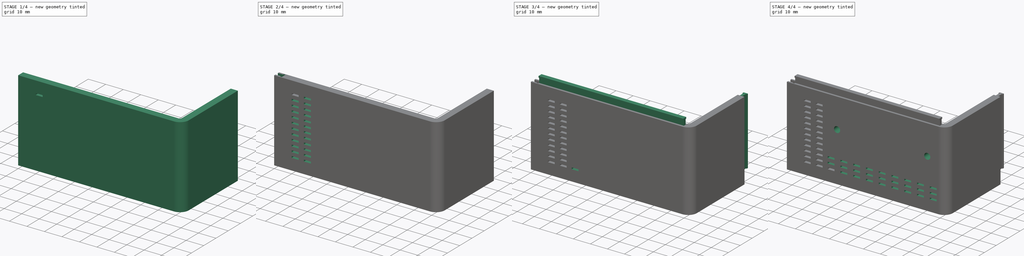
[diagram: build sequence overview — one tinted view per stage of 4, left to right]
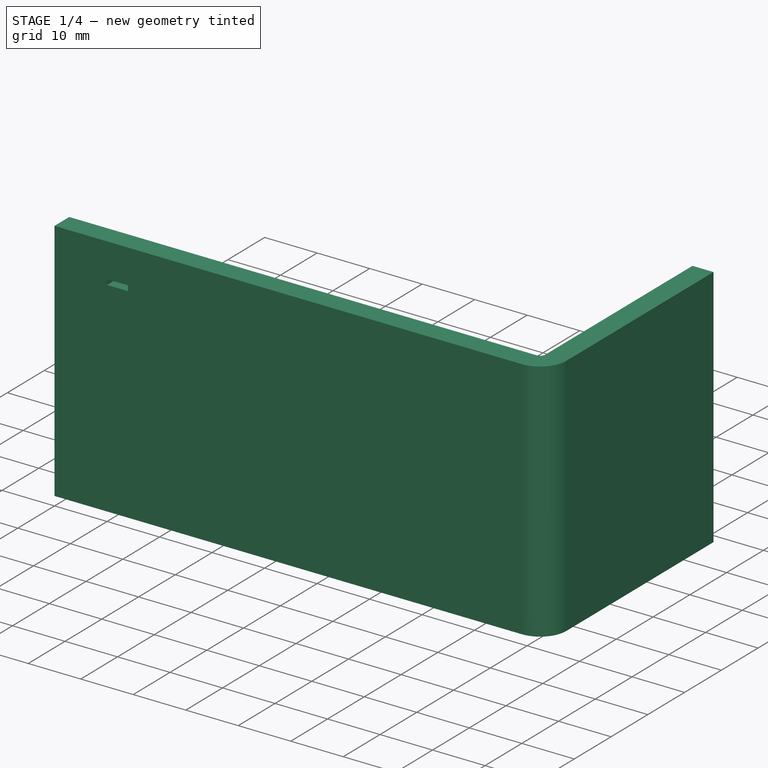
[diagram: stage 1 of 4 — iso view after this stage's code; geometry added in this stage tinted green]
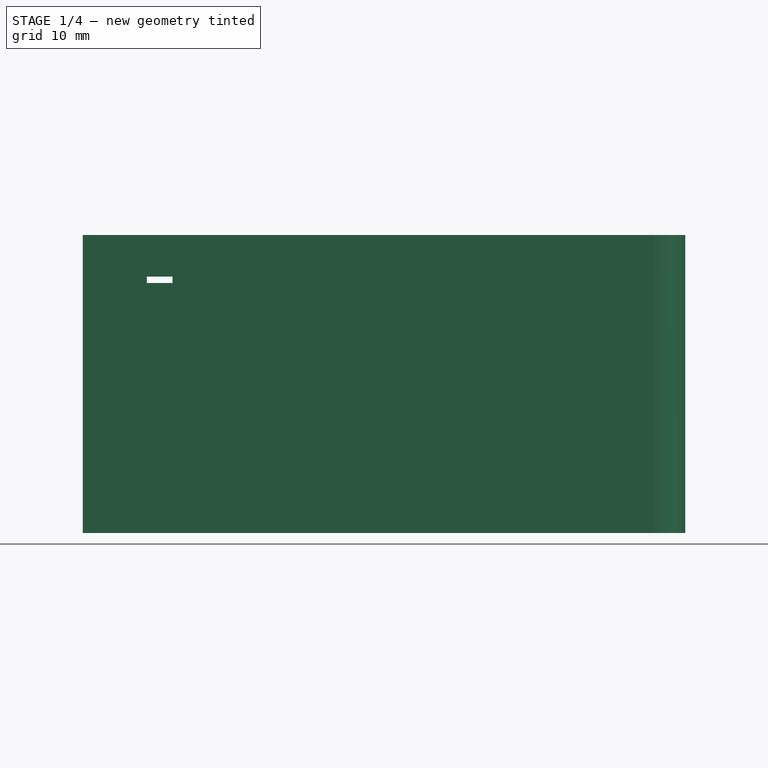
[diagram: stage 1 of 4 — front view after this stage's code; geometry added in this stage tinted green]
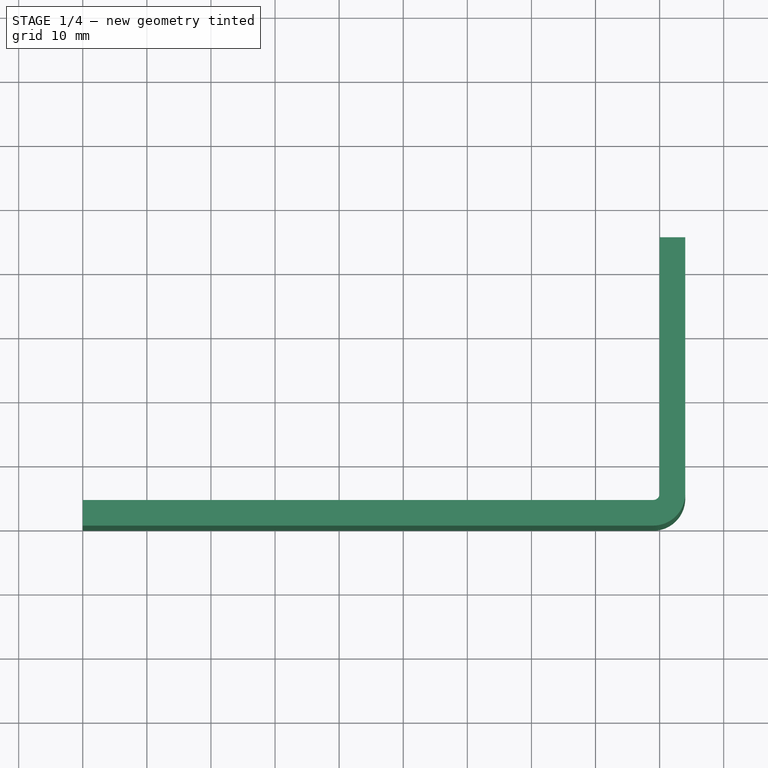
[diagram: stage 1 of 4 — top view after this stage's code; geometry added in this stage tinted green]
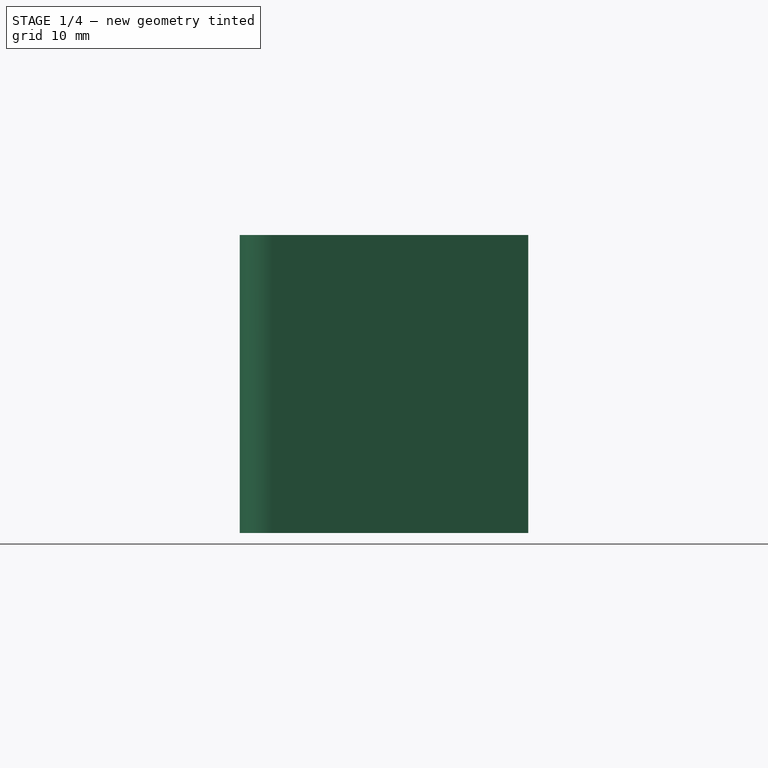
[diagram: stage 1 of 4 — right view after this stage's code; geometry added in this stage tinted green]
FCSTD DOCUMENT  (FreeCAD 1.0R38641 +468 (Git))
Label: focuser-box-side-l
License: All rights reserved
LicenseURL: https://en.wikipedia.org/wiki/All_rights_reserved
objects: Sketcher::SketchObject×8, PartDesign::Pocket×5, PartDesign::LinearPattern×4, PartDesign::Pad×3, PartDesign::MultiTransform×2, PartDesign::Body×1
note: 53 computed .brp shape members not serialized (recipe doc carries the construction recipe); baked Part::Feature solids carry a one-line shape summary decoded from their .brp

FEATURE [Sketcher::SketchObject] Sketch  label="front-trail"
  ArcFitTolerance = 1e-06
  AttachmentSupport = -> [XY_Plane014]
  FullyConstrained = true
  MakeInternals = false
  MapMode = 5
  sketch-geometry (8):
    g0: LineSegment StartX=91.25 StartY=48 StartZ=0 EndX=91.25 EndY=45 EndZ=0
    g1: LineSegment StartX=91.25 StartY=45 StartZ=0 EndX=92.75 EndY=45 EndZ=0
    g2: LineSegment StartX=92.75 StartY=45 StartZ=0 EndX=92.75 EndY=48 EndZ=0
    g3: LineSegment StartX=92.75 StartY=48 StartZ=0 EndX=91.25 EndY=48 EndZ=0
    g4: LineSegment StartX=93.25 StartY=48.9 StartZ=0 EndX=90.75 EndY=48.9 EndZ=0
    g5: LineSegment StartX=90.75 StartY=48.9 StartZ=0 EndX=90.75 EndY=48 EndZ=0
    g6: LineSegment StartX=90.75 StartY=48 StartZ=0 EndX=93.25 EndY=48 EndZ=0
    g7: LineSegment StartX=93.25 StartY=48 StartZ=0 EndX=93.25 EndY=48.9 EndZ=0
  constraints (24):
    c: Coincident(g0,g1)
    c: Coincident(g1,g2)
    c: Coincident(g2,g3)
    c: Coincident(g3,g0)
    c: Vertical(g0)
    c: Vertical(g2)
    c: Horizontal(g1)
    c: Horizontal(g3)
    c: Distance(g0,g2) = 1.5
    c: Distance(g1,g3) = 3
    c: Coincident(g4,g5)
    c: Coincident(g5,g6)
    c: Coincident(g6,g7)
    c: Coincident(g7,g4)
    c: Horizontal(g4)
    c: Horizontal(g6)
    c: Vertical(g5)
    c: Vertical(g7)
    c: Distance(g5,g7) = 2.5
    c: Distance(g4,g6) = 0.9
    c: DistanceX(g4,g0) = 0.5
    c: DistanceY(g6,g2) = 0
    c: DistanceY(g-1,g0) = 45
    c: DistanceX(g-1,g0) = 91.25
FEATURE [Sketcher::SketchObject] Sketch117  label="side-wall-l"
  ArcFitTolerance = 1e-06
  AttachmentSupport = -> [XY_Plane014]
  FullyConstrained = true
  MakeInternals = false
  MapMode = 5
  sketch-geometry (8):
    g0: LineSegment StartX=0 StartY=0 StartZ=0 EndX=89 EndY=0 EndZ=0
    g1: LineSegment StartX=0 StartY=0 StartZ=0 EndX=0 EndY=4 EndZ=0
    g2: LineSegment StartX=0 StartY=4 StartZ=0 EndX=89 EndY=4 EndZ=0
    g3: ArcOfCircle CenterX=89 CenterY=5 CenterZ=0 NormalX=0 NormalY=0 NormalZ=1 AngleXU=0 Radius=1 StartAngle=4.71239 EndAngle=6.28318
    g4: ArcOfCircle CenterX=89 CenterY=5 CenterZ=0 NormalX=0 NormalY=0 NormalZ=1 AngleXU=0 Radius=5 StartAngle=4.71239 EndAngle=6.28319
    g5: LineSegment StartX=90 StartY=5 StartZ=0 EndX=90 EndY=45 EndZ=0
    g6: LineSegment StartX=94 StartY=5 StartZ=0 EndX=94 EndY=45 EndZ=0
    g7: LineSegment StartX=90 StartY=45 StartZ=0 EndX=94 EndY=45 EndZ=0
  constraints (25):
    c: Distance(g0) = 89
    c: Coincident(g0,g-1)
    c: PointOnObject(g0,g-1)
    c: Distance(g1) = 4
    c: Coincident(g1,g0)
    c: PointOnObject(g1,g-2)
    c: Distance(g2) = 89
    c: Coincident(g2,g1)
    c: Horizontal(g2)
    c: Angle(g3) = 1.5708
    c: Coincident(g3,g2)
    c: Angle(g4) = 1.5708
    c: Coincident(g4,g0)
    c: DistanceX(g3,g3) = 1
    c: DistanceX(g3,g4) = 5
    c: DistanceX(g0,g3) = 90
    c: DistanceY(g4) = 5
    c: Distance(g5) = 40
    c: Coincident(g5,g3)
    c: Vertical(g5)
    c: Distance(g6) = 40
    c: Coincident(g6,g4)
    c: Vertical(g6)
    c: Coincident(g7,g5)
    c: Coincident(g7,g6)
FEATURE [PartDesign::Pad] Pad058
  Direction = (0,0,1)
  Length = 46.5
  Length2 = 10
  Profile = -> Sketch117
  ReferenceAxis = -> Sketch117 [N_Axis]
  Refine = true
  Suppressed = false
  Type = 0
FEATURE [Sketcher::SketchObject] Sketch119  label="top-trail"
  ArcFitTolerance = 1e-06
  AttachmentSupport = -> [YZ_Plane014]
  FullyConstrained = true
  MakeInternals = false
  MapMode = 5
  Placement = pos=(0,0,0) rot=(0.57735,0.57735,0.57735;2.0944rad)
  sketch-geometry (8):
    g0: LineSegment StartX=1.25 StartY=49.5 StartZ=0 EndX=1.25 EndY=46.5 EndZ=0
    g1: LineSegment StartX=1.25 StartY=46.5 StartZ=0 EndX=2.75 EndY=46.5 EndZ=0
    g2: LineSegment StartX=2.75 StartY=46.5 StartZ=0 EndX=2.75 EndY=49.5 EndZ=0
    g3: LineSegment StartX=2.75 StartY=49.5 StartZ=0 EndX=1.25 EndY=49.5 EndZ=0
    g4: LineSegment StartX=0.75 StartY=50.4 StartZ=0 EndX=0.75 EndY=49.5 EndZ=0
    g5: LineSegment StartX=0.75 StartY=49.5 StartZ=0 EndX=3.25 EndY=49.5 EndZ=0
    g6: LineSegment StartX=3.25 StartY=49.5 StartZ=0 EndX=3.25 EndY=50.4 EndZ=0
    g7: LineSegment StartX=3.25 StartY=50.4 StartZ=0 EndX=0.75 EndY=50.4 EndZ=0
  constraints (24):
    c: Coincident(g0,g1)
    c: Coincident(g1,g2)
    c: Coincident(g2,g3)
    c: Coincident(g3,g0)
    c: Vertical(g0)
    c: Vertical(g2)
    c: Horizontal(g1)
    c: Horizontal(g3)
    c: Distance(g0,g2) = 1.5
    c: Distance(g1,g3) = 3
    c: Coincident(g4,g5)
    c: Coincident(g5,g6)
    c: Coincident(g6,g7)
    c: Coincident(g7,g4)
    c: Vertical(g4)
    c: Vertical(g6)
    c: Horizontal(g5)
    c: Horizontal(g7)
    c: Distance(g4,g6) = 2.5
    c: Distance(g5,g7) = 0.9
    c: DistanceY(g0,g4) = 0
    c: DistanceY(g-1,g0) = 46.5
    c: DistanceX(g-1,g0) = 1.25
    c: DistanceX(g2,g5) = 0.5
FEATURE [Sketcher::SketchObject] Sketch120  label="mazgal"
  ArcFitTolerance = 1e-06
  AttachmentSupport = -> [XZ_Plane014]
  FullyConstrained = false
  MakeInternals = false
  MapMode = 5
  Placement = pos=(0,0,0) rot=(1,0,0;1.5708rad)
  sketch-geometry (4):
    g0: LineSegment StartX=10 StartY=39 StartZ=0 EndX=10 EndY=40 EndZ=0
    g1: LineSegment StartX=10 StartY=40 StartZ=0 EndX=14 EndY=40 EndZ=0
    g2: LineSegment StartX=14 StartY=40 StartZ=0 EndX=14 EndY=39 EndZ=0
    g3: LineSegment StartX=14 StartY=39 StartZ=0 EndX=10 EndY=39 EndZ=0
  constraints (11):
    c: Coincident(g0,g1)
    c: Coincident(g1,g2)
    c: Coincident(g2,g3)
    c: Coincident(g3,g0)
    c: Vertical(g0)
    c: Vertical(g2)
    c: Horizontal(g1)
    c: Horizontal(g3)
    c: Distance(g0,g2) = 4
    c: Distance(g1,g3) = 1
    c: DistanceY(g-1,g0) = 40
FEATURE [PartDesign::LinearPattern] LinearPattern
  Direction = -> Sketch120 [H_Axis]
  Length = 7
  Mode = 0
  Occurrences = 2
  Offset = 7
  Refine = true
  Suppressed = false
  TransformMode = 0
FEATURE [PartDesign::LinearPattern] LinearPattern001
  Direction = -> Sketch120 [V_Axis]
  Length = 32.5
  Mode = 0
  Occurrences = 12
  Offset = 2.95455
  Refine = true
  Reversed = true
  Suppressed = false
  TransformMode = 0
FEATURE [PartDesign::Pocket] Pocket068
  BaseFeature = -> Pad058
  Direction = (0,1,-2e-16)
  Length = 5
  Length2 = 5
  Profile = -> Sketch120
  ReferenceAxis = -> Sketch120 [N_Axis]
  Refine = true
  Suppressed = false
  Type = 0
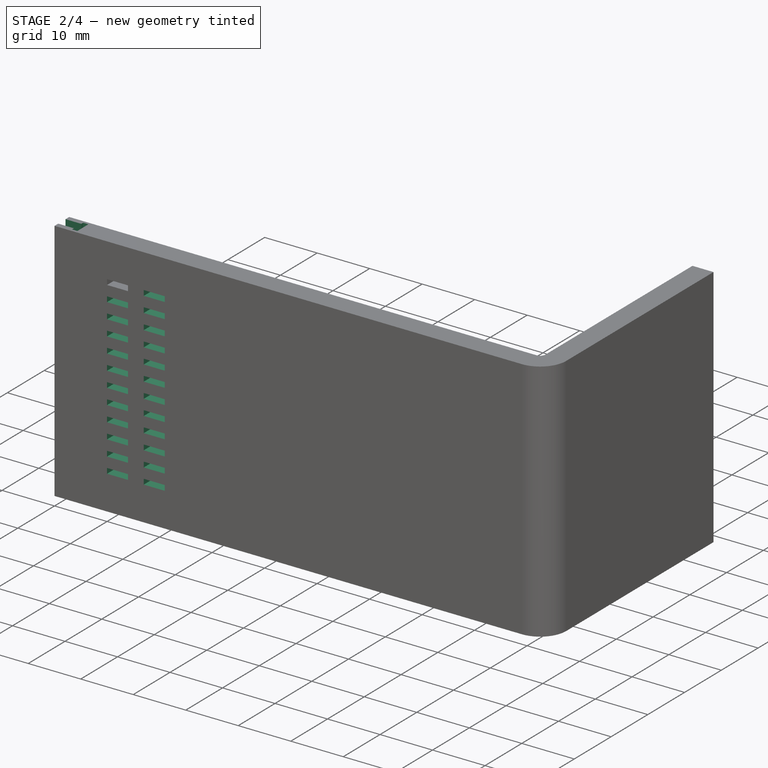
[diagram: stage 2 of 4 — iso view after this stage's code; geometry added in this stage tinted green]
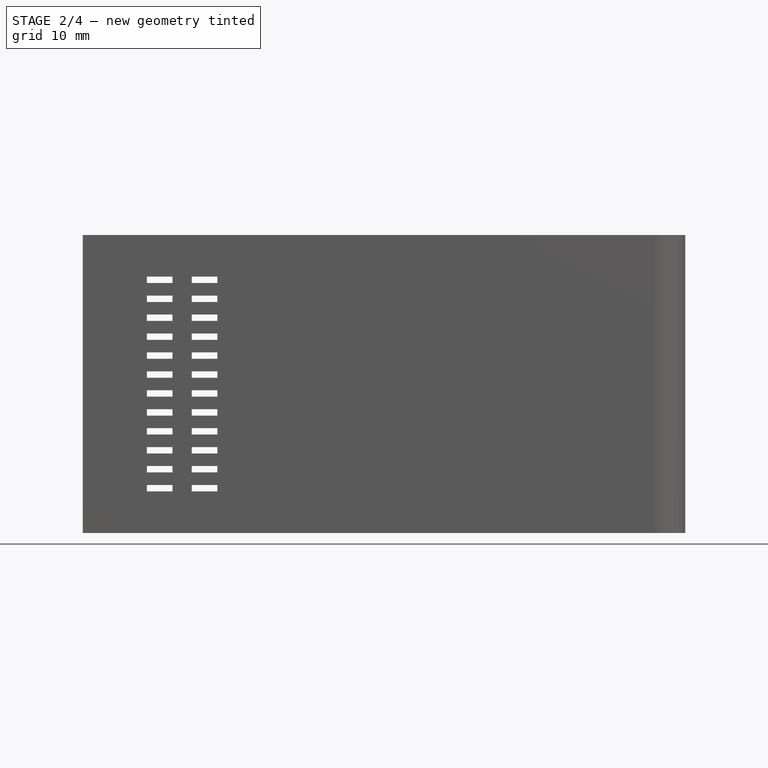
[diagram: stage 2 of 4 — front view after this stage's code; geometry added in this stage tinted green]
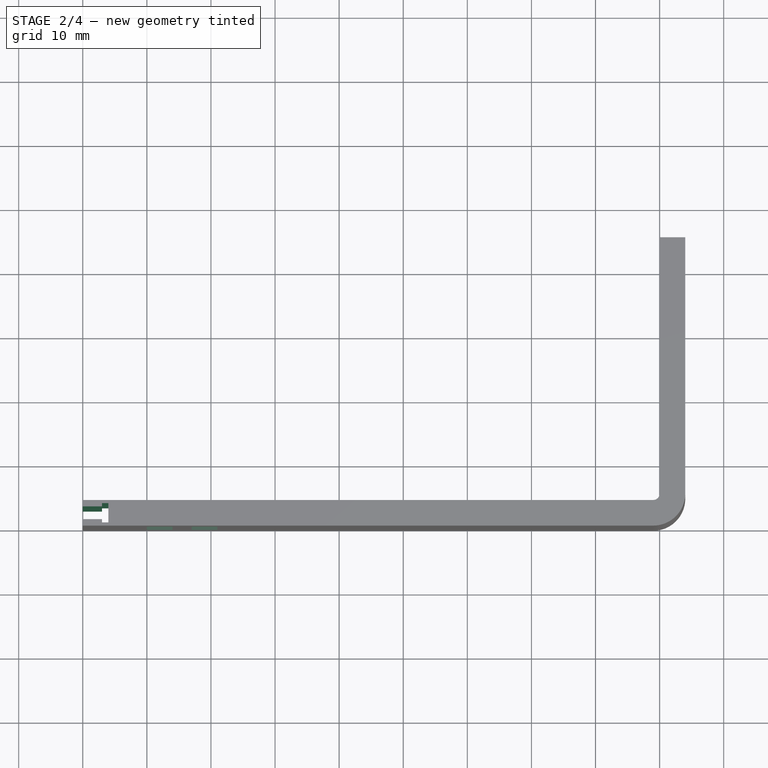
[diagram: stage 2 of 4 — top view after this stage's code; geometry added in this stage tinted green]
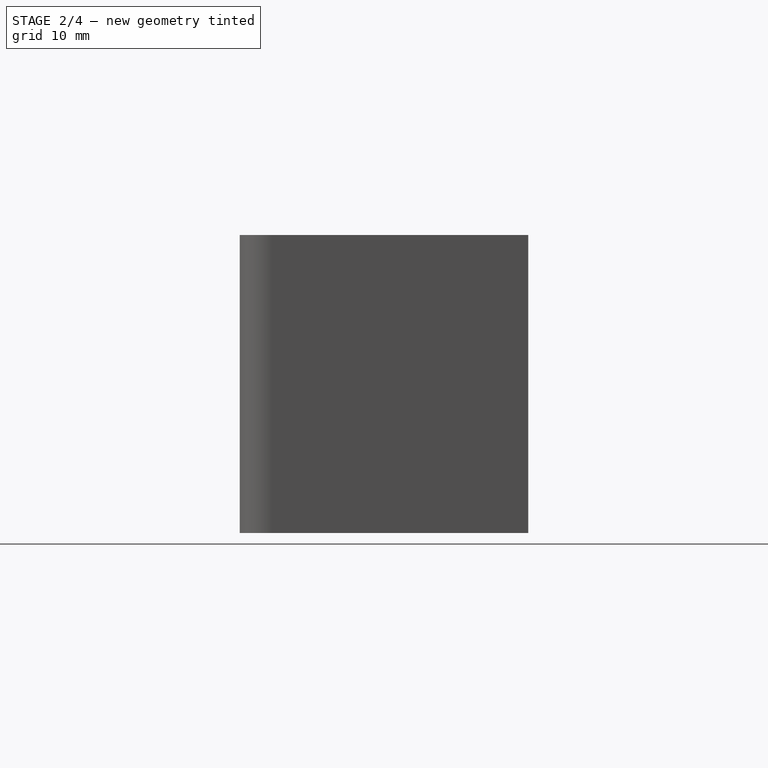
[diagram: stage 2 of 4 — right view after this stage's code; geometry added in this stage tinted green]
FEATURE [PartDesign::MultiTransform] MultiTransform
  BaseFeature = -> Pocket068
  Originals = -> [Pocket068]
  Refine = true
  Suppressed = false
  TransformMode = 0
  Transformations = -> [LinearPattern,LinearPattern001]
FEATURE [Sketcher::SketchObject] Sketch122  label="side-canal"
  ArcFitTolerance = 1e-06
  AttachmentSupport = -> [XY_Plane014]
  FullyConstrained = true
  MakeInternals = false
  MapMode = 5
  sketch-geometry (8):
    g0: LineSegment StartX=3 StartY=3 StartZ=0 EndX=0 EndY=3 EndZ=0
    g1: LineSegment StartX=0 StartY=3 StartZ=0 EndX=0 EndY=1 EndZ=0
    g2: LineSegment StartX=0 StartY=1 StartZ=0 EndX=3 EndY=1 EndZ=0
    g3: LineSegment StartX=3 StartY=1 StartZ=0 EndX=3 EndY=3 EndZ=0
    g4: LineSegment StartX=3 StartY=3.5 StartZ=0 EndX=3 EndY=0.5 EndZ=0
    g5: LineSegment StartX=3 StartY=0.5 StartZ=0 EndX=4 EndY=0.5 EndZ=0
    g6: LineSegment StartX=4 StartY=0.5 StartZ=0 EndX=4 EndY=3.5 EndZ=0
    g7: LineSegment StartX=4 StartY=3.5 StartZ=0 EndX=3 EndY=3.5 EndZ=0
  constraints (24):
    c: Coincident(g0,g1)
    c: Coincident(g1,g2)
    c: Coincident(g2,g3)
    c: Coincident(g3,g0)
    c: Horizontal(g0)
    c: Horizontal(g2)
    c: Vertical(g1)
    c: Vertical(g3)
    c: Distance(g1,g3) = 3
    c: Distance(g0,g2) = 2
    c: PointOnObject(g1,g-2)
    c: DistanceY(g-1,g1) = 1
    c: Coincident(g4,g5)
    c: Coincident(g5,g6)
    c: Coincident(g6,g7)
    c: Coincident(g7,g4)
    c: Vertical(g4)
    c: Vertical(g6)
    c: Horizontal(g5)
    c: Horizontal(g7)
    c: Distance(g4,g6) = 1
    c: Distance(g5,g7) = 3
    c: DistanceX(g0,g4) = 0
    c: DistanceY(g0,g4) = 0.5
FEATURE [PartDesign::Pocket] Pocket070
  BaseFeature = -> MultiTransform
  Direction = (0,0,-1)
  Length = 70.9
  Length2 = 5
  Profile = -> Sketch122
  ReferenceAxis = -> Sketch122 [N_Axis]
  Refine = true
  Reversed = true
  Suppressed = false
  Type = 0
FEATURE [Sketcher::SketchObject] Sketch123  label="front-space"
  ArcFitTolerance = 1e-06
  AttachmentSupport = -> [XY_Plane014]
  FullyConstrained = true
  MakeInternals = false
  MapMode = 5
  sketch-geometry (4):
    g0: LineSegment StartX=93 StartY=45 StartZ=0 EndX=91 EndY=45 EndZ=0
    g1: LineSegment StartX=91 StartY=45 StartZ=0 EndX=91 EndY=10 EndZ=0
    g2: LineSegment StartX=91 StartY=10 StartZ=0 EndX=93 EndY=10 EndZ=0
    g3: LineSegment StartX=93 StartY=10 StartZ=0 EndX=93 EndY=45 EndZ=0
  constraints (12):
    c: Coincident(g0,g1)
    c: Coincident(g1,g2)
    c: Coincident(g2,g3)
    c: Coincident(g3,g0)
    c: Horizontal(g0)
    c: Horizontal(g2)
    c: Vertical(g1)
    c: Vertical(g3)
    c: Distance(g1,g3) = 2
    c: Distance(g0,g2) = 35
    c: DistanceY(g-1,g1) = 10
    c: DistanceX(g-1,g1) = 91
FEATURE [PartDesign::Pocket] Pocket071
  BaseFeature = -> Pocket070
  Direction = (0,0,-1)
  Length = 7
  Length2 = 5
  Profile = -> Sketch123
  ReferenceAxis = -> Sketch123 [N_Axis]
  Refine = true
  Reversed = true
  Suppressed = false
  Type = 0
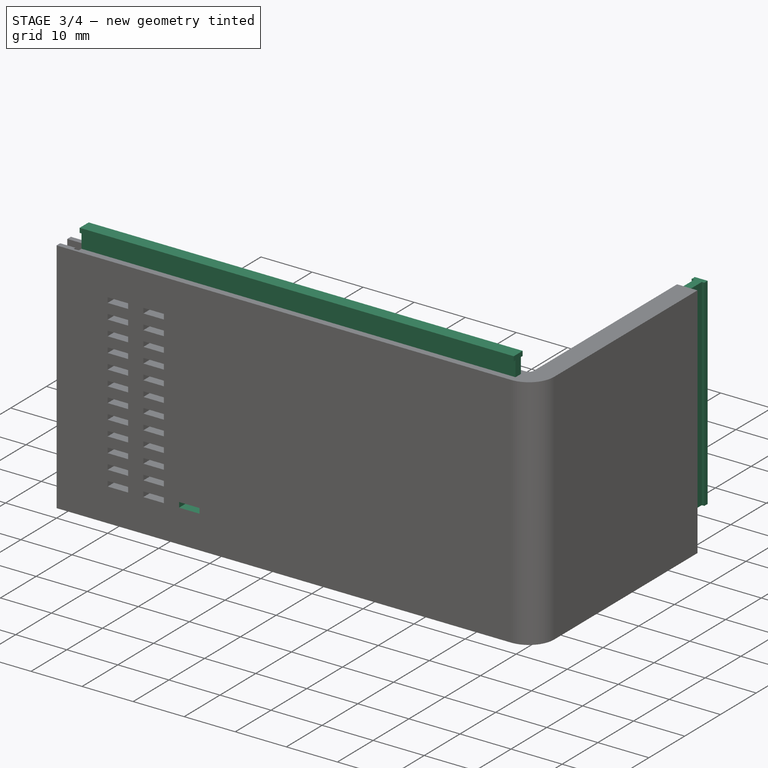
[diagram: stage 3 of 4 — iso view after this stage's code; geometry added in this stage tinted green]
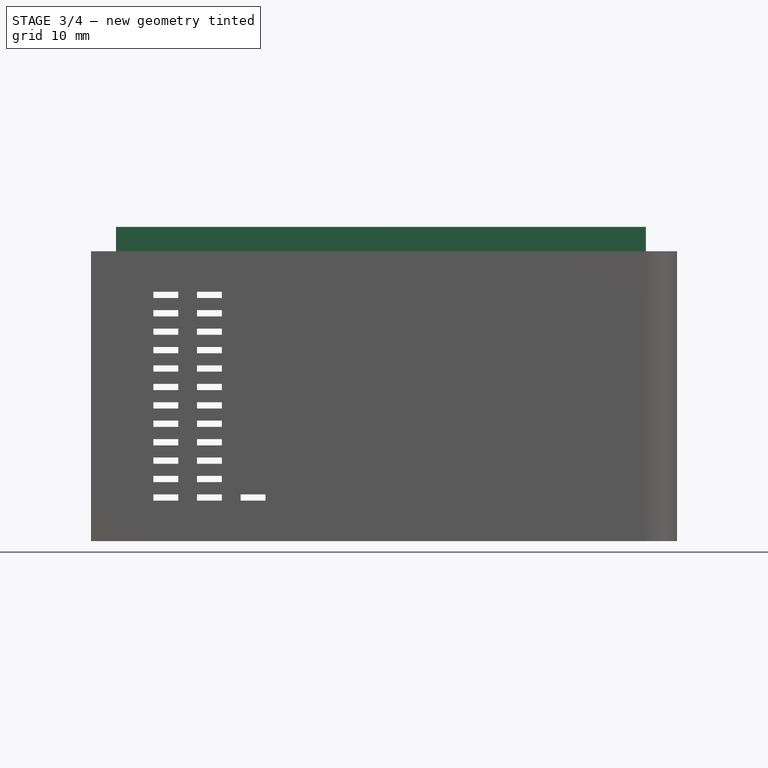
[diagram: stage 3 of 4 — front view after this stage's code; geometry added in this stage tinted green]
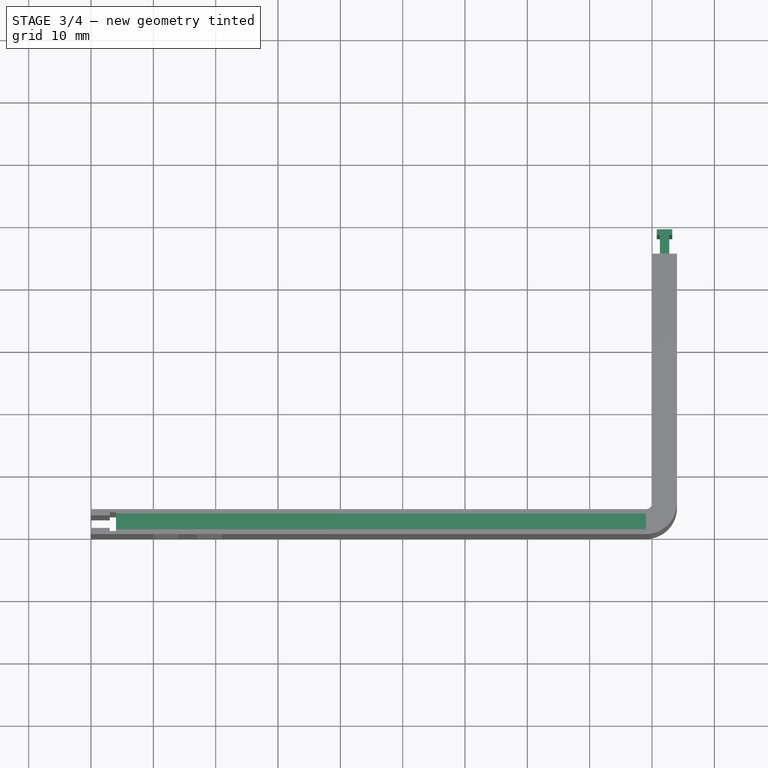
[diagram: stage 3 of 4 — top view after this stage's code; geometry added in this stage tinted green]
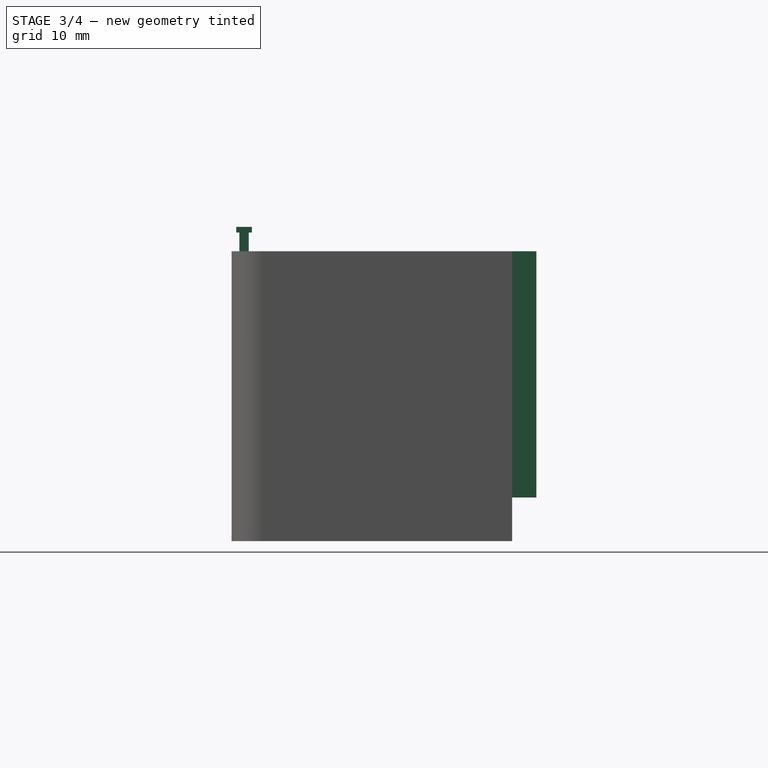
[diagram: stage 3 of 4 — right view after this stage's code; geometry added in this stage tinted green]
FEATURE [PartDesign::Pad] Pad
  BaseFeature = -> Pocket071
  Direction = (1,0,0)
  Length = 89
  Length2 = -4
  Profile = -> Sketch119
  ReferenceAxis = -> Sketch119 [N_Axis]
  Refine = true
  Suppressed = false
  Type = 4
FEATURE [PartDesign::Pad] Pad059
  BaseFeature = -> Pad
  Direction = (0,0,1)
  Length = 46.5
  Length2 = -7
  Profile = -> Sketch
  ReferenceAxis = -> Sketch [N_Axis]
  Refine = true
  Suppressed = false
  Type = 4
FEATURE [Sketcher::SketchObject] Sketch124  label="mazgal001"
  ArcFitTolerance = 1e-06
  FullyConstrained = true
  MakeInternals = false
  MapMode = 5
  Placement = pos=(0,0,0) rot=(1,0,0;1.5708rad)
  sketch-geometry (4):
    g0: LineSegment StartX=28 StartY=7.5 StartZ=0 EndX=28 EndY=6.5 EndZ=0
    g1: LineSegment StartX=28 StartY=6.5 StartZ=0 EndX=24 EndY=6.5 EndZ=0
    g2: LineSegment StartX=24 StartY=6.5 StartZ=0 EndX=24 EndY=7.5 EndZ=0
    g3: LineSegment StartX=24 StartY=7.5 StartZ=0 EndX=28 EndY=7.5 EndZ=0
  constraints (12):
    c: Coincident(g0,g1)
    c: Coincident(g1,g2)
    c: Coincident(g2,g3)
    c: Coincident(g3,g0)
    c: Vertical(g0)
    c: Vertical(g2)
    c: Horizontal(g1)
    c: Horizontal(g3)
    c: Distance(g0,g2) = 4
    c: Distance(g1,g3) = 1
    c: DistanceY(g-1,g0) = 6.5
    c: DistanceX(g-1,g0) = 28
FEATURE [PartDesign::Pocket] Pocket
  BaseFeature = -> Pad059
  Direction = (0,1,-2e-16)
  Length = 5
  Length2 = 5
  Profile = -> Sketch124
  ReferenceAxis = -> Sketch124 [N_Axis]
  Refine = true
  Suppressed = false
  Type = 0
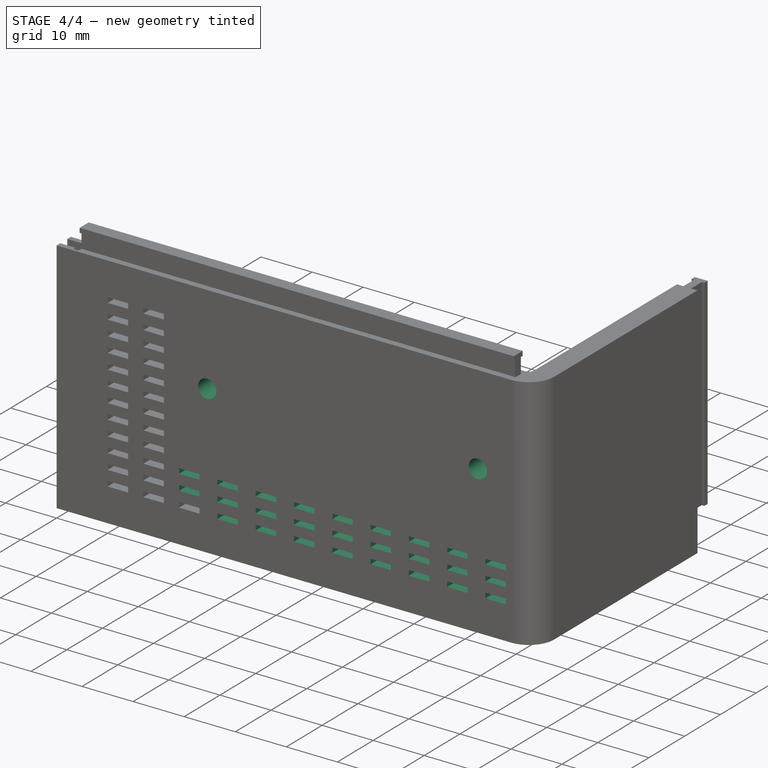
[diagram: stage 4 of 4 — iso view after this stage's code; geometry added in this stage tinted green]
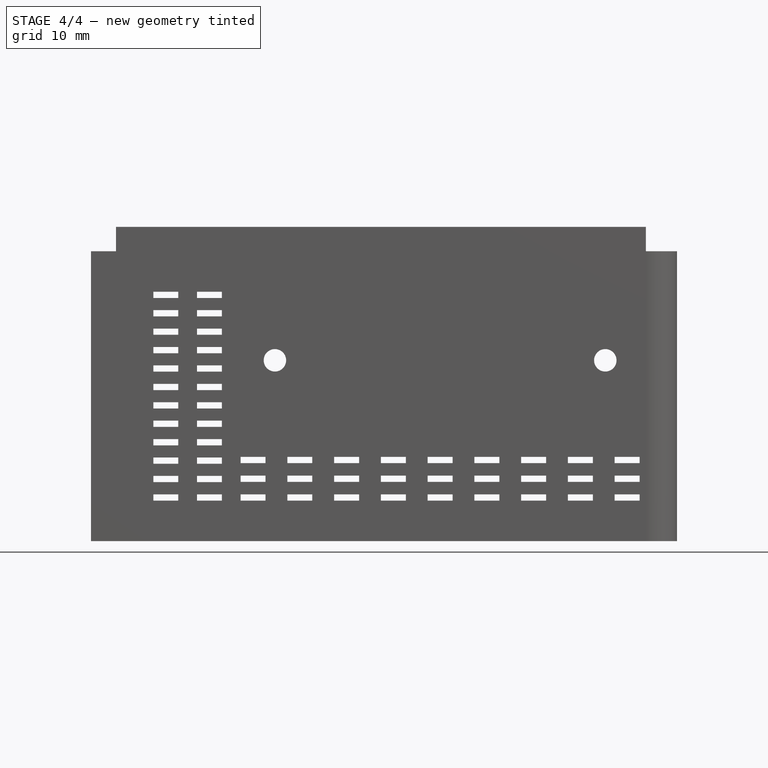
[diagram: stage 4 of 4 — front view after this stage's code; geometry added in this stage tinted green]
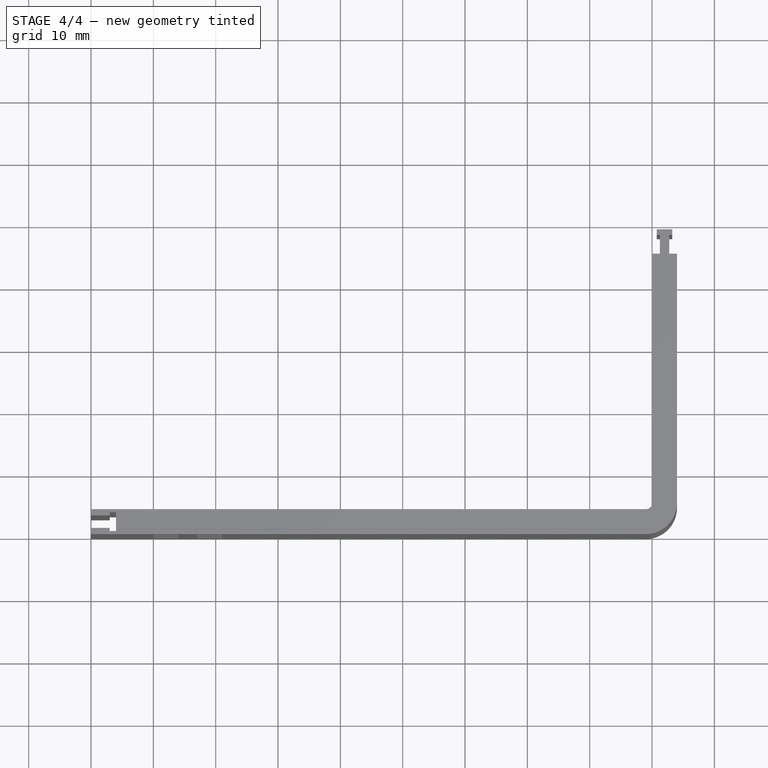
[diagram: stage 4 of 4 — top view after this stage's code; geometry added in this stage tinted green]
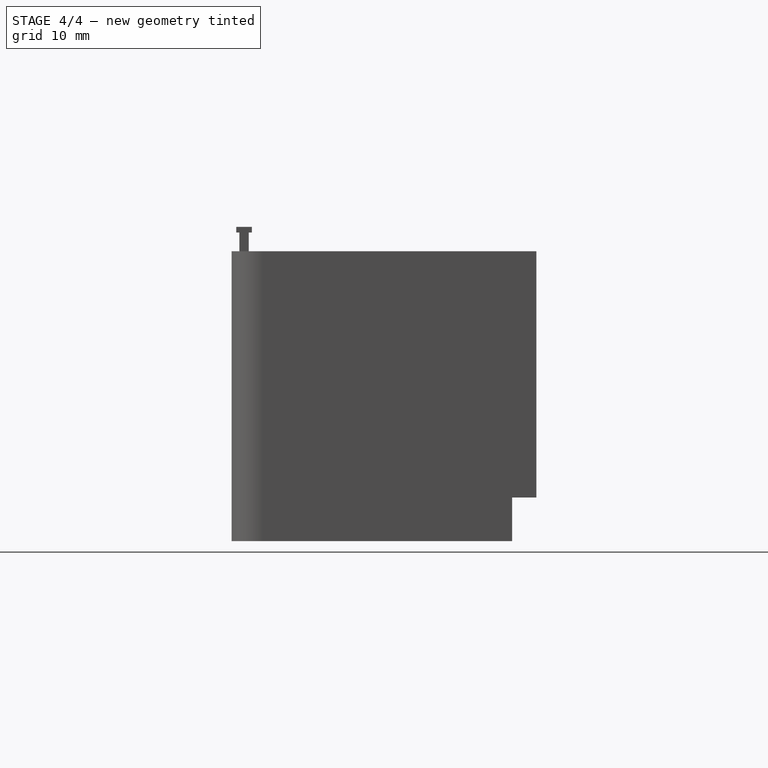
[diagram: stage 4 of 4 — right view after this stage's code; geometry added in this stage tinted green]
FEATURE [PartDesign::LinearPattern] LinearPattern002
  Direction = -> Sketch124 [H_Axis]
  Length = 60
  Mode = 0
  Occurrences = 9
  Offset = 7.5
  Refine = true
  Suppressed = false
  TransformMode = 0
FEATURE [PartDesign::LinearPattern] LinearPattern003
  Direction = -> Sketch124 [V_Axis]
  Length = 6
  Mode = 0
  Occurrences = 3
  Offset = 3
  Refine = true
  Suppressed = false
  TransformMode = 0
FEATURE [PartDesign::MultiTransform] MultiTransform001
  BaseFeature = -> Pocket
  Originals = -> [Pocket]
  Refine = true
  Suppressed = false
  TransformMode = 0
  Transformations = -> [LinearPattern002,LinearPattern003]
FEATURE [Sketcher::SketchObject] Sketch126
  ArcFitTolerance = 1e-06
  AttachmentSupport = -> [XZ_Plane014]
  FullyConstrained = true
  MakeInternals = false
  MapMode = 5
  Placement = pos=(0,0,0) rot=(1,0,0;1.5708rad)
  sketch-geometry (2):
    g0: Circle CenterX=29.5 CenterY=29 CenterZ=0 NormalX=0 NormalY=0 NormalZ=1 AngleXU=0 Radius=1.8
    g1: Circle CenterX=82.5 CenterY=29 CenterZ=0 NormalX=0 NormalY=0 NormalZ=1 AngleXU=0 Radius=1.8
  constraints (6):
    c: Diameter(g0) = 3.6
    c: Diameter(g1) = 3.6
    c: DistanceX(g0,g1) = 53
    c: DistanceY(g0,g1) = 0
    c: DistanceY(g-1,g0) = 29
    c: DistanceX(g-1,g0) = 29.5
FEATURE [PartDesign::Pocket] Pocket072
  BaseFeature = -> MultiTransform001
  Direction = (0,1,-2e-16)
  Length = 5
  Length2 = 5
  Profile = -> Sketch126
  ReferenceAxis = -> Sketch126 [N_Axis]
  Refine = true
  Suppressed = false
  Type = 0
FEATURE [PartDesign::Body] Body014  label="fb-side-l"
  AllowCompound = false
  Group = -> [Sketch117,Pad058,Sketch120,Pocket068,MultiTransform,LinearPattern,LinearPattern001,Sketch122,Pocket070,Sketch,Sketch123,Pocket071,Sketch119,Pad,Pad059,Sketch124,Pocket,MultiTransform001,LinearPattern002,LinearPattern003,Sketch126,Pocket072]
  Origin = -> Origin014
  Tip = -> Pocket072
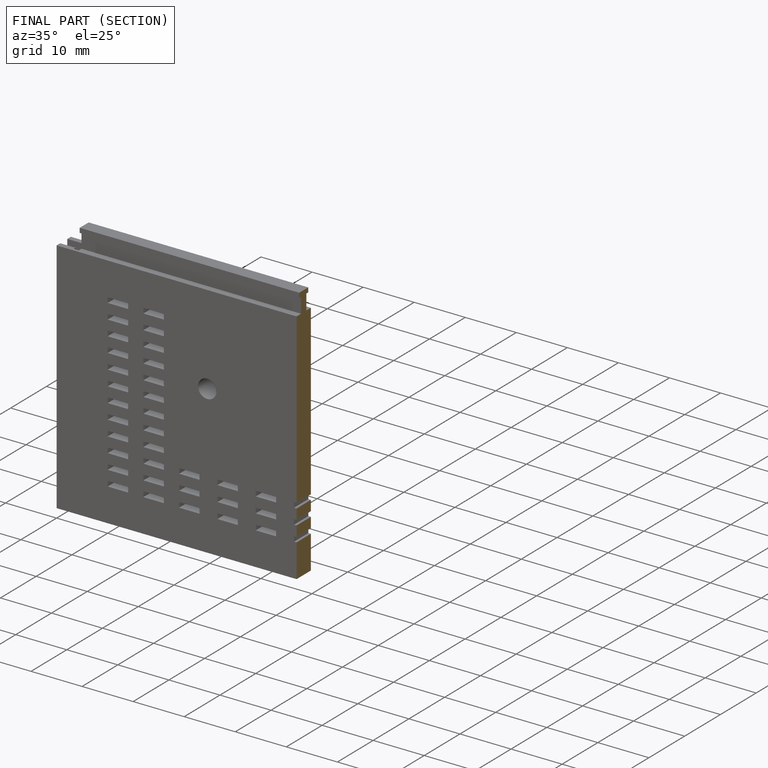
[diagram: finished part — half-section view (interior)]
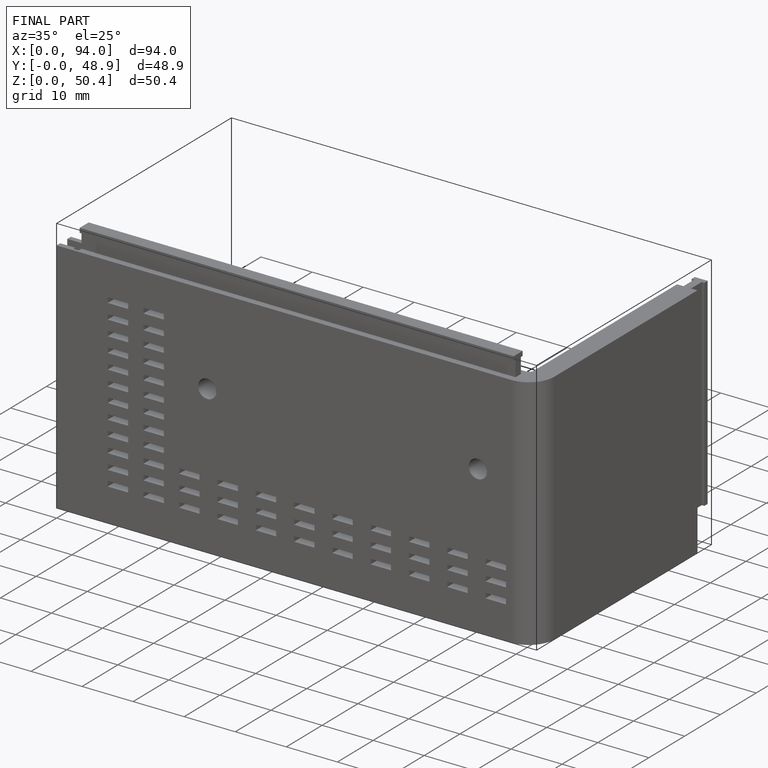
[diagram: finished part — iso view with bounding-box wireframe]
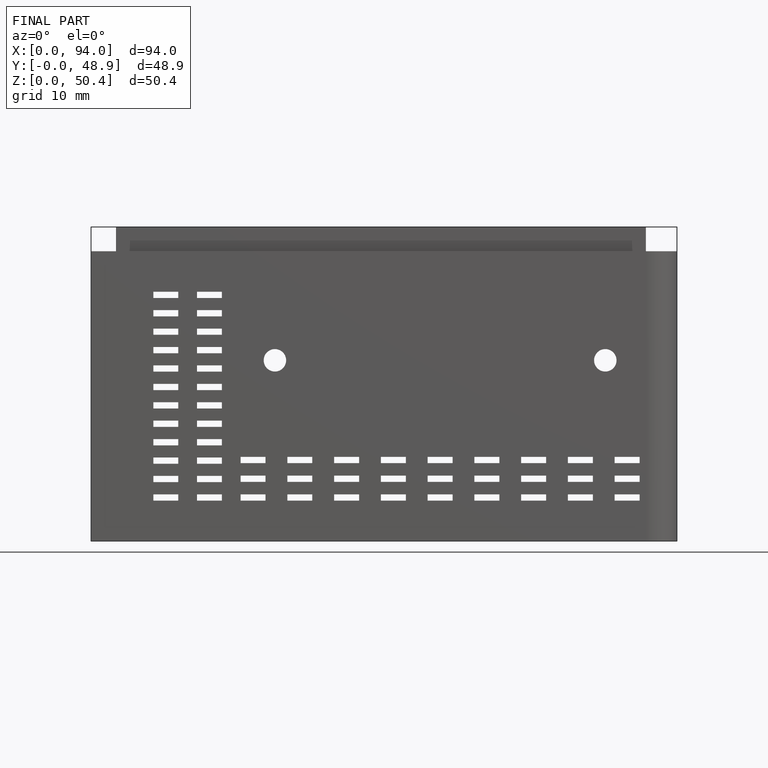
[diagram: finished part — front view with bounding-box wireframe]
